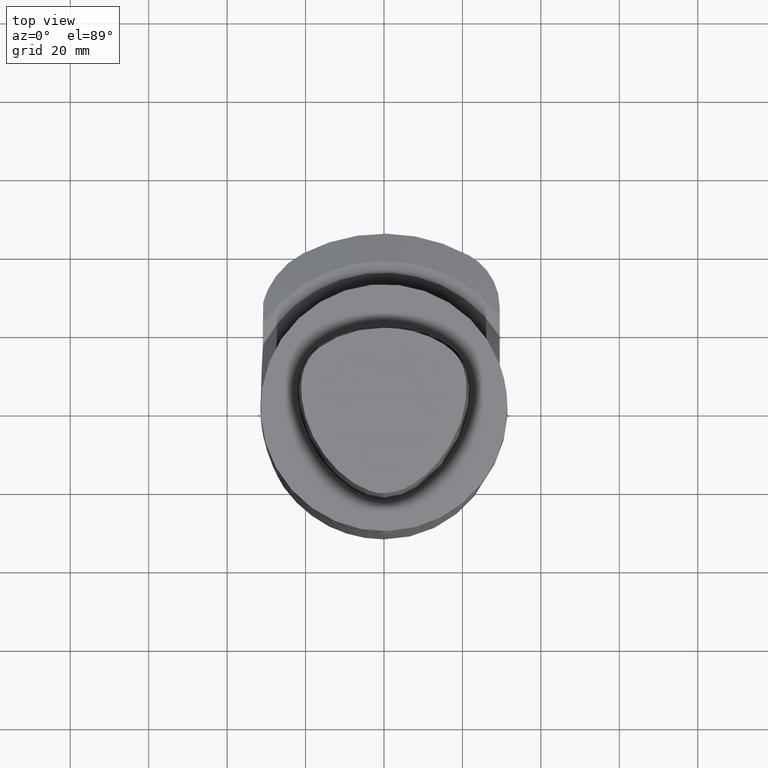
[diagram: clean part render]
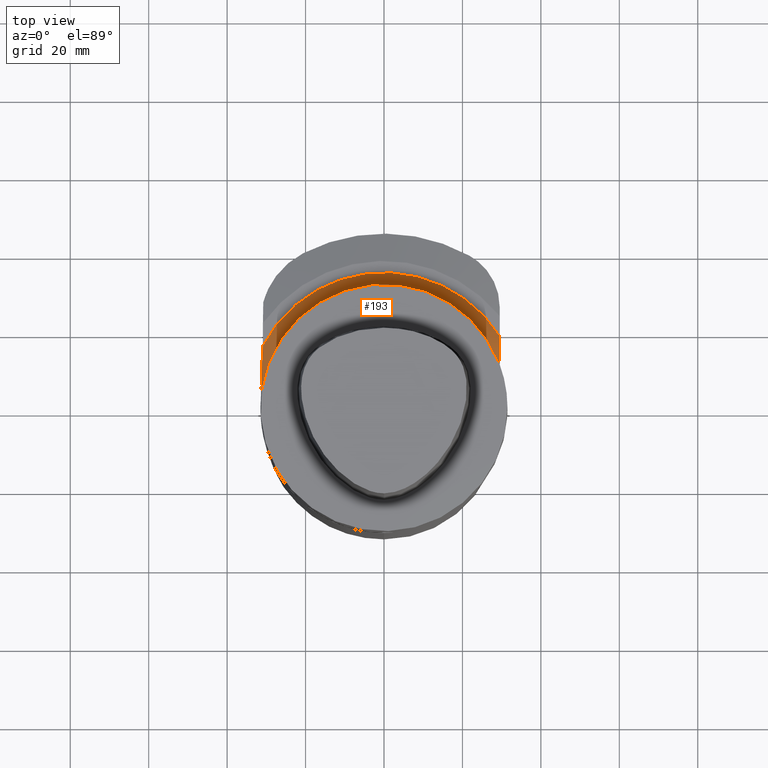
[diagram: same view with one face highlighted and labeled with its STEP entity id]
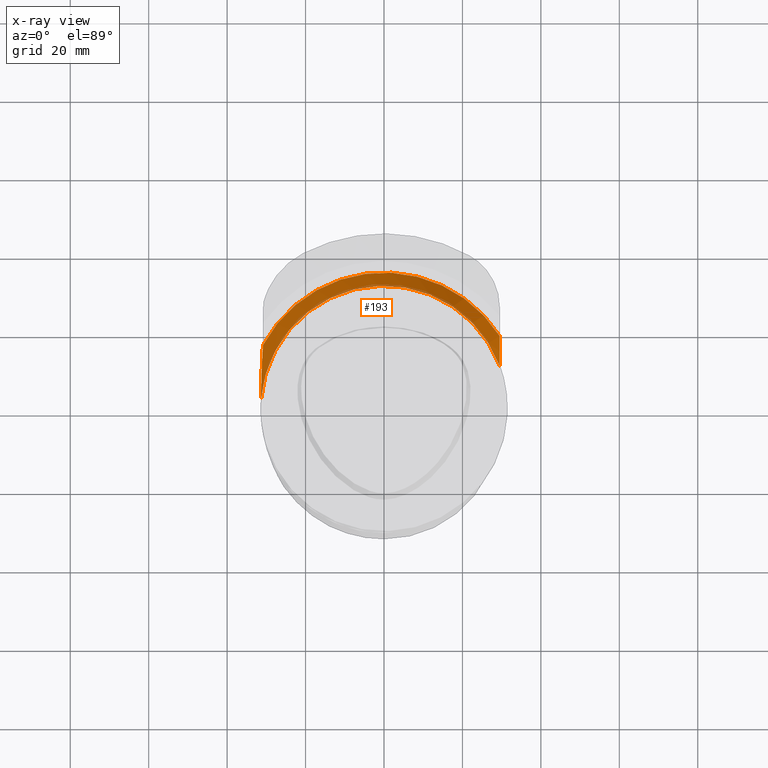
[diagram: x-ray of the same camera — body ghosted, the highlighted face saturated]
A machine part, top view. The second image highlights one B-rep face of the part: STEP entity #193.
The next image is the same camera in x-ray: the body ghosted, the highlighted face saturated — about 10% of this face is hidden behind the body in this view.
In plain terms, the highlighted conical surface has half-angle 25.056 deg.
Its self-contained STEP definition (entity closure, byte-faithful):
#131=EDGE_CURVE('240[2]',#325,#354,#355,.T.);
#193=ADVANCED_FACE('240[2]',(#449),#450,.T.);
#198=EDGE_CURVE('240[2]',#456,#325,#457,.T.);
#281=EDGE_CURVE('240[2]',#499,#354,#557,.T.);
#295=EDGE_CURVE('240[2]',#499,#456,#571,.T.);
#325=VERTEX_POINT('',#594);
#354=VERTEX_POINT('',#665);
#355=(B_SPLINE_CURVE(2,(#667,#668,#669),.UNSPECIFIED.,.F.,.F.)B_SPLINE_CURVE_WITH_KNOTS((3,3),(2.06715274543633E-012,16.0797056005118),.UNSPECIFIED.)RATIONAL_B_SPLINE_CURVE((1.0,1.01715240322138,1.00000201456526))BOUNDED_CURVE()REPRESENTATION_ITEM('')GEOMETRIC_REPRESENTATION_ITEM()CURVE());
#449=FACE_OUTER_BOUND('',#869,.T.);
#450=CONICAL_SURFACE('',#870,33.2462499999997,0.437311247817373);
#456=VERTEX_POINT('',#878);
#457=CIRCLE('',#879,34.9999999999993);
#499=VERTEX_POINT('',#979);
#557=CIRCLE('',#1213,31.4925000000002);
#571=(B_SPLINE_CURVE(2,(#1240,#1241,#1242),.UNSPECIFIED.,.F.,.F.)B_SPLINE_CURVE_WITH_KNOTS((3,3),(1.98568637762305E-012,10.8454100689453),.UNSPECIFIED.)RATIONAL_B_SPLINE_CURVE((1.0,1.0069718031341,1.0))BOUNDED_CURVE()REPRESENTATION_ITEM('')GEOMETRIC_REPRESENTATION_ITEM()CURVE());
#594=CARTESIAN_POINT('',(-30.8706586925083,16.4924962298195,-32.999999822605));
#665=CARTESIAN_POINT('',(-31.39529675217,2.47242757086968,-25.4973260258153));
#667=CARTESIAN_POINT('',(-30.8706586925083,16.4924962298198,-32.9999998226053));
#668=CARTESIAN_POINT('',(-31.3269005056537,9.16536832056688,-26.4754379204568));
#669=CARTESIAN_POINT('',(-31.39529675217,2.47242757086967,-25.4973260258153));
#869=EDGE_LOOP('',(#1381,#1382,#1383,#1384));
#870=AXIS2_PLACEMENT_3D('',#1385,#1386,#1387);
#878=CARTESIAN_POINT('',(29.5000000000013,18.834808201834,-32.9999998226051));
#879=AXIS2_PLACEMENT_3D('',#1395,#1396,#1397);
#979=CARTESIAN_POINT('',(29.5000000000014,11.023953748539,-25.4973260258153));
#1213=AXIS2_PLACEMENT_3D('',#1539,#1540,#1541);
#1240=CARTESIAN_POINT('',(29.5000000000014,11.0239537485388,-25.4973260258151));
#1241=CARTESIAN_POINT('',(29.5000000000013,14.7233684775746,-28.2673380264351));
#1242=CARTESIAN_POINT('',(29.5000000000013,18.8348082018341,-32.9999998226052));
#1381=ORIENTED_EDGE('',*,*,#131,.T.);
#1382=ORIENTED_EDGE('',*,*,#281,.F.);
#1383=ORIENTED_EDGE('',*,*,#295,.T.);
#1384=ORIENTED_EDGE('',*,*,#198,.T.);
#1385=CARTESIAN_POINT('',(-1.7909640714737E-015,-8.5265128291212E-014,-29.2486629242101));
#1386=DIRECTION('',(-6.12323399573681E-017,-3.20148320609355E-015,-1.0));
#1387=DIRECTION('',(1.22464679914735E-016,1.0,-3.20148320609355E-015));
#1395=CARTESIAN_POINT('',(-2.02066720773084E-015,-1.13686837721616E-013,-32.999999822605));
#1396=DIRECTION('',(6.12323399573681E-017,3.20148320609355E-015,1.0));
#1397=DIRECTION('',(1.22464679914735E-016,1.0,-3.20148320609355E-015));
#1539=CARTESIAN_POINT('',(-1.56126093521657E-015,-8.5265128291212E-014,-25.4973260258153));
#1540=DIRECTION('',(6.12323399573681E-017,3.20148320609355E-015,1.0));
#1541=DIRECTION('',(1.22464679914735E-016,1.0,-3.20148320609355E-015));